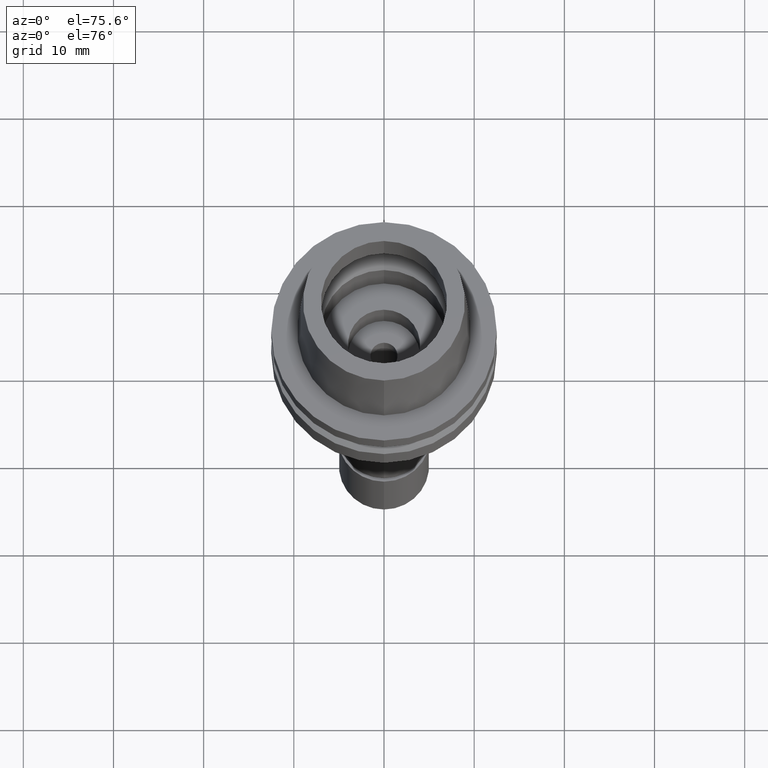
[diagram: clean part render]
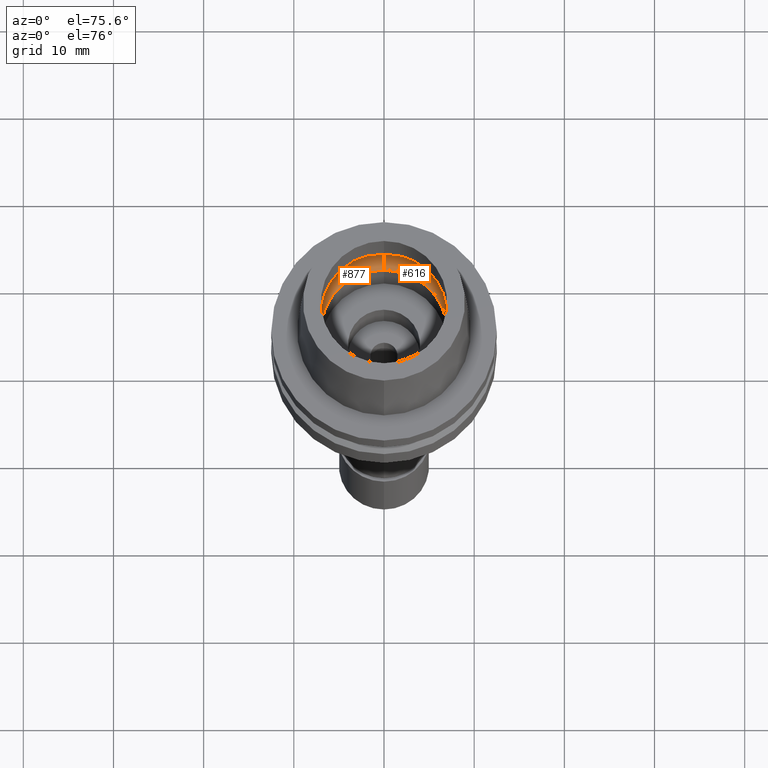
[diagram: same view with one multi-face feature highlighted, each face labeled with its STEP entity id]
A machine part, auxiliary view. The highlighted faces form ONE feature: a constant-radius fillet chain: 2 tangent blend faces with common blend radius 3 mm. The faces share edges in the B-rep.
Their STEP definitions:
[1] entity #877 (Torus):
#22 = EDGE_CURVE ( 'NONE', #2475, #1884, #1606, .T. ) ;
#36 = EDGE_LOOP ( 'NONE', ( #1154, #756, #478, #1684 ) ) ;
#146 = DIRECTION ( 'NONE',  ( 0.0000000000000000000, 1.000000000000000000, 0.0000000000000000000 ) ) ;
#422 = DIRECTION ( 'NONE',  ( 0.0000000000000000000, -1.000000000000000000, 0.0000000000000000000 ) ) ;
#425 = VERTEX_POINT ( 'NONE', #2256 ) ;
#478 = ORIENTED_EDGE ( 'NONE', *, *, #22, .F. ) ;
#480 = FACE_OUTER_BOUND ( 'NONE', #36, .T. ) ;
#647 = DIRECTION ( 'NONE',  ( 0.0000000000000000000, 0.0000000000000000000, 1.000000000000000000 ) ) ;
#689 = EDGE_CURVE ( 'NONE', #1378, #425, #2304, .T. ) ;
#738 = CIRCLE ( 'NONE', #2269, 3.000000000000000000 ) ;
#756 = ORIENTED_EDGE ( 'NONE', *, *, #1170, .F. ) ;
#866 = CARTESIAN_POINT ( 'NONE',  ( 0.0000000000000000000, 0.0000000000000000000, 2.449999999999999734 ) ) ;
#872 = AXIS2_PLACEMENT_3D ( 'NONE', #1379, #1180, #146 ) ;
#877 = ADVANCED_FACE ( 'NONE', ( #480 ), #1386, .F. ) ;
#919 = CARTESIAN_POINT ( 'NONE',  ( 0.0000000000000000000, -7.000000000000000000, 0.05000000000002000067 ) ) ;
#983 = CARTESIAN_POINT ( 'NONE',  ( 0.0000000000000000000, 0.0000000000000000000, 2.449999999999999734 ) ) ;
#1012 = CARTESIAN_POINT ( 'NONE',  ( 0.0000000000000000000, 5.200000000000000178, 2.449999999999999734 ) ) ;
#1154 = ORIENTED_EDGE ( 'NONE', *, *, #689, .F. ) ;
#1169 = AXIS2_PLACEMENT_3D ( 'NONE', #1969, #1775, #2609 ) ;
#1170 = EDGE_CURVE ( 'NONE', #1884, #1378, #2348, .T. ) ;
#1180 = DIRECTION ( 'NONE',  ( 0.0000000000000000000, 0.0000000000000000000, 1.000000000000000000 ) ) ;
#1222 = AXIS2_PLACEMENT_3D ( 'NONE', #866, #647, #2309 ) ;
#1282 = CARTESIAN_POINT ( 'NONE',  ( 0.0000000000000000000, -8.200000000000001066, 2.449999999999999734 ) ) ;
#1367 = EDGE_CURVE ( 'NONE', #2475, #425, #738, .T. ) ;
#1378 = VERTEX_POINT ( 'NONE', #1282 ) ;
#1379 = CARTESIAN_POINT ( 'NONE',  ( 0.0000000000000000000, 0.0000000000000000000, 0.05000000000002000067 ) ) ;
#1386 = TOROIDAL_SURFACE ( 'NONE', #1222, 5.200000000000000178, 3.000000000000000000 ) ;
#1606 = CIRCLE ( 'NONE', #872, 7.000000000000000000 ) ;
#1684 = ORIENTED_EDGE ( 'NONE', *, *, #1367, .T. ) ;
#1775 = DIRECTION ( 'NONE',  ( -1.000000000000000000, 0.0000000000000000000, 0.0000000000000000000 ) ) ;
#1836 = DIRECTION ( 'NONE',  ( 1.000000000000000000, 0.0000000000000000000, 0.0000000000000000000 ) ) ;
#1884 = VERTEX_POINT ( 'NONE', #919 ) ;
#1969 = CARTESIAN_POINT ( 'NONE',  ( 0.0000000000000000000, -5.200000000000000178, 2.449999999999999734 ) ) ;
#2016 = CARTESIAN_POINT ( 'NONE',  ( 0.0000000000000000000, 7.000000000000000000, 0.05000000000002999961 ) ) ;
#2256 = CARTESIAN_POINT ( 'NONE',  ( 0.0000000000000000000, 8.200000000000001066, 2.449999999999999734 ) ) ;
#2263 = AXIS2_PLACEMENT_3D ( 'NONE', #983, #2686, #422 ) ;
#2269 = AXIS2_PLACEMENT_3D ( 'NONE', #1012, #1836, #2559 ) ;
#2304 = CIRCLE ( 'NONE', #2263, 8.200000000000001066 ) ;
#2309 = DIRECTION ( 'NONE',  ( 0.0000000000000000000, 1.000000000000000000, 0.0000000000000000000 ) ) ;
#2348 = CIRCLE ( 'NONE', #1169, 3.000000000000000000 ) ;
#2475 = VERTEX_POINT ( 'NONE', #2016 ) ;
#2559 = DIRECTION ( 'NONE',  ( 0.0000000000000000000, 0.5999999999999998668, -0.8000000000000001554 ) ) ;
#2609 = DIRECTION ( 'NONE',  ( 0.0000000000000000000, -0.5999999999999998668, -0.8000000000000001554 ) ) ;
#2686 = DIRECTION ( 'NONE',  ( 0.0000000000000000000, 0.0000000000000000000, -1.000000000000000000 ) ) ;
[2] entity #616 (Torus):
#137 = DIRECTION ( 'NONE',  ( 0.0000000000000000000, 1.000000000000000000, 0.0000000000000000000 ) ) ;
#237 = AXIS2_PLACEMENT_3D ( 'NONE', #1523, #2360, #492 ) ;
#350 = AXIS2_PLACEMENT_3D ( 'NONE', #1320, #1521, #2551 ) ;
#386 = ORIENTED_EDGE ( 'NONE', *, *, #1170, .T. ) ;
#425 = VERTEX_POINT ( 'NONE', #2256 ) ;
#492 = DIRECTION ( 'NONE',  ( 0.0000000000000000000, -1.000000000000000000, 0.0000000000000000000 ) ) ;
#616 = ADVANCED_FACE ( 'NONE', ( #1752 ), #2594, .F. ) ;
#651 = ORIENTED_EDGE ( 'NONE', *, *, #1076, .F. ) ;
#738 = CIRCLE ( 'NONE', #2269, 3.000000000000000000 ) ;
#919 = CARTESIAN_POINT ( 'NONE',  ( 0.0000000000000000000, -7.000000000000000000, 0.05000000000002000067 ) ) ;
#971 = CIRCLE ( 'NONE', #237, 7.000000000000000000 ) ;
#1012 = CARTESIAN_POINT ( 'NONE',  ( 0.0000000000000000000, 5.200000000000000178, 2.449999999999999734 ) ) ;
#1076 = EDGE_CURVE ( 'NONE', #425, #1378, #2161, .T. ) ;
#1149 = CARTESIAN_POINT ( 'NONE',  ( 0.0000000000000000000, 0.0000000000000000000, 2.449999999999999734 ) ) ;
#1159 = EDGE_LOOP ( 'NONE', ( #1695, #386, #651, #1494 ) ) ;
#1169 = AXIS2_PLACEMENT_3D ( 'NONE', #1969, #1775, #2609 ) ;
#1170 = EDGE_CURVE ( 'NONE', #1884, #1378, #2348, .T. ) ;
#1173 = DIRECTION ( 'NONE',  ( 0.0000000000000000000, 0.0000000000000000000, 1.000000000000000000 ) ) ;
#1282 = CARTESIAN_POINT ( 'NONE',  ( 0.0000000000000000000, -8.200000000000001066, 2.449999999999999734 ) ) ;
#1299 = AXIS2_PLACEMENT_3D ( 'NONE', #1149, #1173, #137 ) ;
#1320 = CARTESIAN_POINT ( 'NONE',  ( 0.0000000000000000000, 0.0000000000000000000, 2.449999999999999734 ) ) ;
#1367 = EDGE_CURVE ( 'NONE', #2475, #425, #738, .T. ) ;
#1378 = VERTEX_POINT ( 'NONE', #1282 ) ;
#1494 = ORIENTED_EDGE ( 'NONE', *, *, #1367, .F. ) ;
#1521 = DIRECTION ( 'NONE',  ( 0.0000000000000000000, 0.0000000000000000000, -1.000000000000000000 ) ) ;
#1523 = CARTESIAN_POINT ( 'NONE',  ( 0.0000000000000000000, 0.0000000000000000000, 0.05000000000002000067 ) ) ;
#1695 = ORIENTED_EDGE ( 'NONE', *, *, #2412, .F. ) ;
#1752 = FACE_OUTER_BOUND ( 'NONE', #1159, .T. ) ;
#1775 = DIRECTION ( 'NONE',  ( -1.000000000000000000, 0.0000000000000000000, 0.0000000000000000000 ) ) ;
#1836 = DIRECTION ( 'NONE',  ( 1.000000000000000000, 0.0000000000000000000, 0.0000000000000000000 ) ) ;
#1884 = VERTEX_POINT ( 'NONE', #919 ) ;
#1969 = CARTESIAN_POINT ( 'NONE',  ( 0.0000000000000000000, -5.200000000000000178, 2.449999999999999734 ) ) ;
#2016 = CARTESIAN_POINT ( 'NONE',  ( 0.0000000000000000000, 7.000000000000000000, 0.05000000000002999961 ) ) ;
#2161 = CIRCLE ( 'NONE', #350, 8.200000000000001066 ) ;
#2256 = CARTESIAN_POINT ( 'NONE',  ( 0.0000000000000000000, 8.200000000000001066, 2.449999999999999734 ) ) ;
#2269 = AXIS2_PLACEMENT_3D ( 'NONE', #1012, #1836, #2559 ) ;
#2348 = CIRCLE ( 'NONE', #1169, 3.000000000000000000 ) ;
#2360 = DIRECTION ( 'NONE',  ( 0.0000000000000000000, 0.0000000000000000000, 1.000000000000000000 ) ) ;
#2412 = EDGE_CURVE ( 'NONE', #1884, #2475, #971, .T. ) ;
#2475 = VERTEX_POINT ( 'NONE', #2016 ) ;
#2551 = DIRECTION ( 'NONE',  ( 0.0000000000000000000, 1.000000000000000000, 0.0000000000000000000 ) ) ;
#2559 = DIRECTION ( 'NONE',  ( 0.0000000000000000000, 0.5999999999999998668, -0.8000000000000001554 ) ) ;
#2594 = TOROIDAL_SURFACE ( 'NONE', #1299, 5.200000000000000178, 3.000000000000000000 ) ;
#2609 = DIRECTION ( 'NONE',  ( 0.0000000000000000000, -0.5999999999999998668, -0.8000000000000001554 ) ) ;